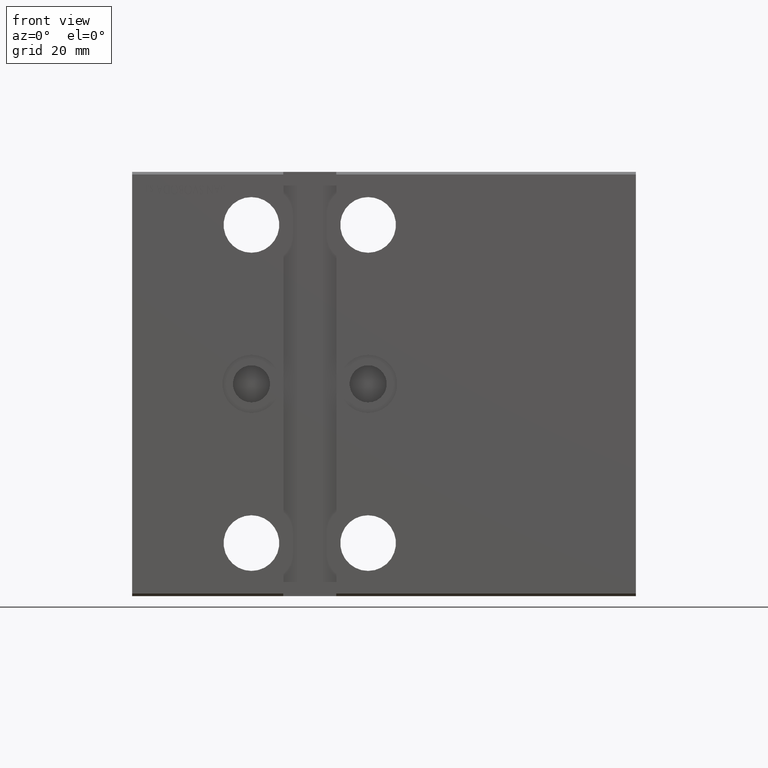
[diagram: clean part render]
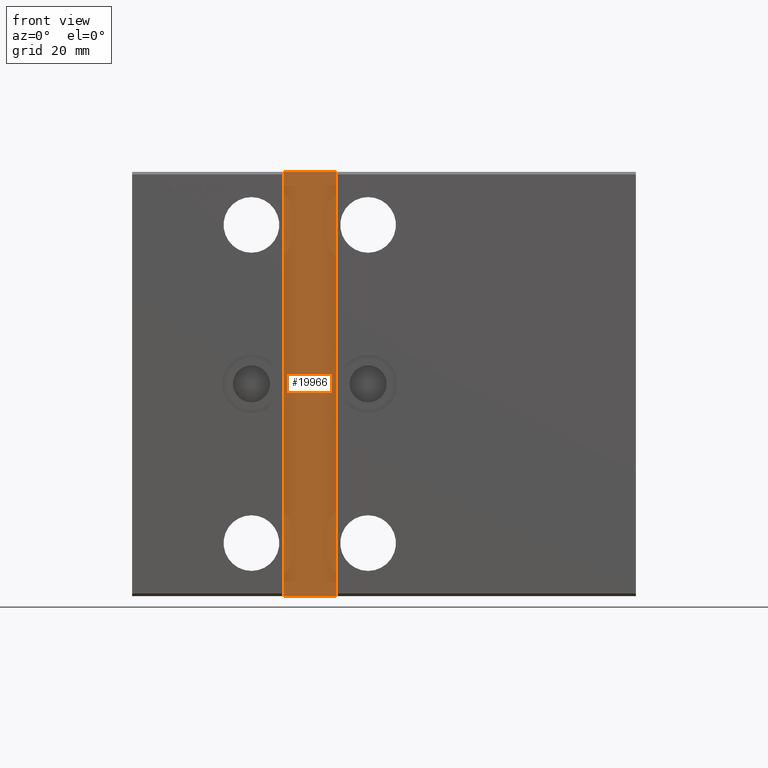
[diagram: same view with one face highlighted and labeled with its STEP entity id]
A machine part, front view. The second image highlights one B-rep face of the part: STEP entity #19966.
In plain terms, the highlighted planar face has unit normal (0, -1, -0).
Its self-contained STEP definition (entity closure, byte-faithful):
#726 = DIRECTION ( 'NONE',  ( 0.000000000000000000, -1.000000000000000000, -8.673617379884036705E-17 ) ) ;
#1329 = VERTEX_POINT ( 'NONE', #37638 ) ;
#1554 = DIRECTION ( 'NONE',  ( 0.000000000000000000, 8.673617379884036705E-17, -1.000000000000000000 ) ) ;
#1949 = EDGE_CURVE ( 'NONE', #1329, #6022, #35349, .T. ) ;
#2121 = ORIENTED_EDGE ( 'NONE', *, *, #21690, .T. ) ;
#2406 = VECTOR ( 'NONE', #32763, 1000.000000000000000 ) ;
#2754 = DIRECTION ( 'NONE',  ( 1.000000000000000000, 0.000000000000000000, 0.000000000000000000 ) ) ;
#2797 = CARTESIAN_POINT ( 'NONE',  ( 56.99999999999999289, -58.00000000000000711, 79.99999999999997158 ) ) ;
#3659 = DIRECTION ( 'NONE',  ( -8.673617379884036705E-17, -8.673617379884036705E-17, 1.000000000000000000 ) ) ;
#5583 = ORIENTED_EDGE ( 'NONE', *, *, #36108, .T. ) ;
#6022 = VERTEX_POINT ( 'NONE', #14463 ) ;
#7563 = VERTEX_POINT ( 'NONE', #8629 ) ;
#8237 = VECTOR ( 'NONE', #3659, 1000.000000000000000 ) ;
#8403 = DIRECTION ( 'NONE',  ( -1.000000000000000000, -0.000000000000000000, -0.000000000000000000 ) ) ;
#8629 = CARTESIAN_POINT ( 'NONE',  ( 57.00000000000002132, -57.99999999999999289, -80.00000000000001421 ) ) ;
#13005 = LINE ( 'NONE', #2797, #2406 ) ;
#14463 = CARTESIAN_POINT ( 'NONE',  ( 77.00000000000001421, -58.00000000000000711, 79.99999999999997158 ) ) ;
#17703 = PLANE ( 'NONE',  #19561 ) ;
#18393 = ORIENTED_EDGE ( 'NONE', *, *, #1949, .T. ) ;
#19561 = AXIS2_PLACEMENT_3D ( 'NONE', #30669, #726, #1554 ) ;
#19966 = ADVANCED_FACE ( 'NONE', ( #26835 ), #17703, .T. ) ;
#21690 = EDGE_CURVE ( 'NONE', #7563, #1329, #28888, .T. ) ;
#26058 = CARTESIAN_POINT ( 'NONE',  ( 56.99999999999999289, -58.00000000000000711, 79.99999999999997158 ) ) ;
#26499 = VERTEX_POINT ( 'NONE', #26058 ) ;
#26835 = FACE_OUTER_BOUND ( 'NONE', #26880, .T. ) ;
#26880 = EDGE_LOOP ( 'NONE', ( #18393, #33534, #5583, #2121 ) ) ;
#28748 = CARTESIAN_POINT ( 'NONE',  ( 77.00000000000001421, -58.00000000000000711, 79.99999999999997158 ) ) ;
#28888 = LINE ( 'NONE', #41870, #30452 ) ;
#30452 = VECTOR ( 'NONE', #2754, 1000.000000000000000 ) ;
#30669 = CARTESIAN_POINT ( 'NONE',  ( 0.000000000000000000, -58.00000000000000000, -5.094029254852529358E-15 ) ) ;
#32763 = DIRECTION ( 'NONE',  ( 1.734723475976807341E-16, 8.673617379884036705E-17, -1.000000000000000000 ) ) ;
#33139 = LINE ( 'NONE', #37518, #36333 ) ;
#33534 = ORIENTED_EDGE ( 'NONE', *, *, #34533, .T. ) ;
#34533 = EDGE_CURVE ( 'NONE', #6022, #26499, #33139, .T. ) ;
#35349 = LINE ( 'NONE', #28748, #8237 ) ;
#36108 = EDGE_CURVE ( 'NONE', #26499, #7563, #13005, .T. ) ;
#36333 = VECTOR ( 'NONE', #8403, 1000.000000000000000 ) ;
#37518 = CARTESIAN_POINT ( 'NONE',  ( 56.99999999999999289, -58.00000000000000711, 79.99999999999997158 ) ) ;
#37638 = CARTESIAN_POINT ( 'NONE',  ( 77.00000000000002842, -57.99999999999999289, -80.00000000000001421 ) ) ;
#41870 = CARTESIAN_POINT ( 'NONE',  ( 57.00000000000002132, -57.99999999999999289, -80.00000000000001421 ) ) ;